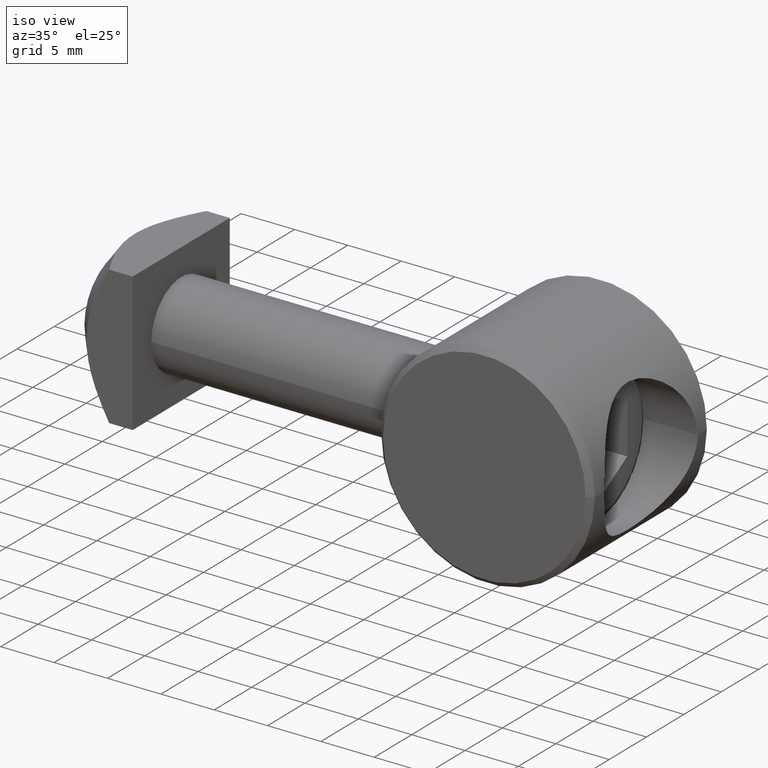
[diagram: clean part render]
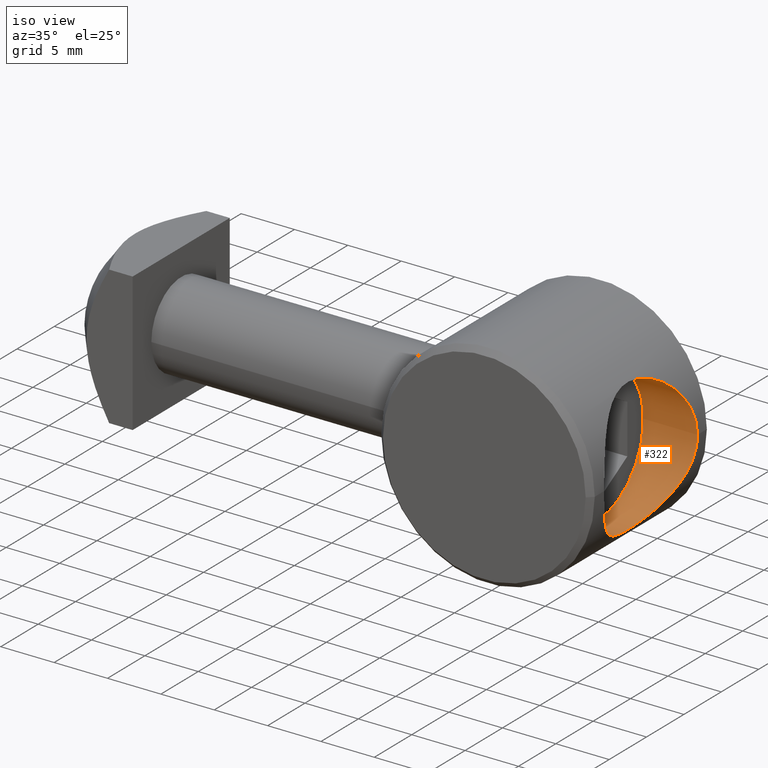
[diagram: same view with one face highlighted and labeled with its STEP entity id]
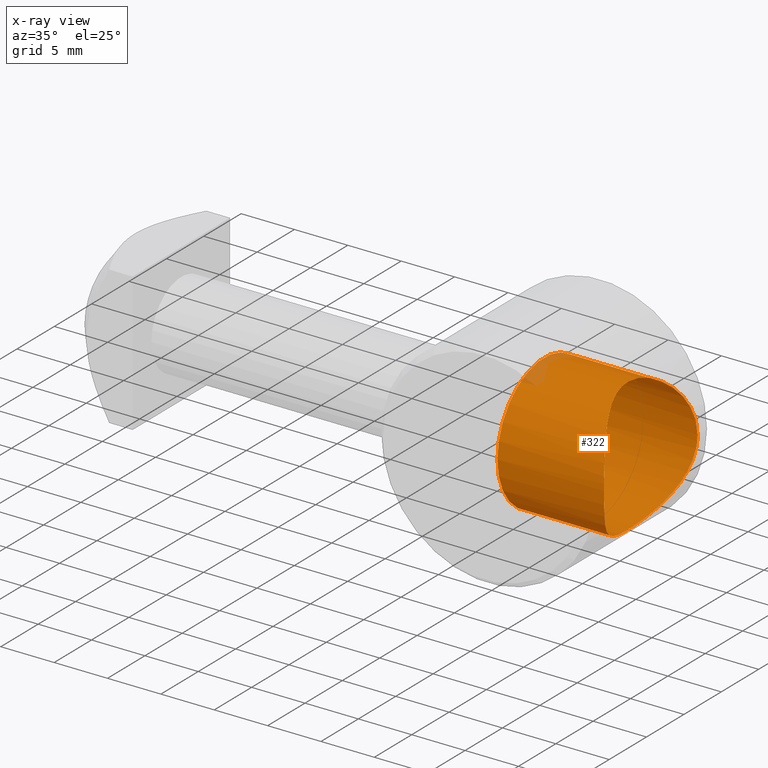
[diagram: x-ray of the same camera — body ghosted, the highlighted face saturated]
A machine part, iso view. The second image highlights one B-rep face of the part: STEP entity #322.
The next image is the same camera in x-ray: the body ghosted, the highlighted face saturated — about 2% of this face is hidden behind the body in this view.
In plain terms, the highlighted cylindrical surface (bore or boss wall) has radius 6.25 mm, axis along (1, 0, 0).
Its self-contained STEP definition (entity closure, byte-faithful):
#89=CARTESIAN_POINT('',(9.999999999959528,-14.249999999943157,0.0));
#90=VERTEX_POINT('',#89);
#97=CARTESIAN_POINT('',(9.999999999959528,-1.749999999993179,0.0));
#98=VERTEX_POINT('',#97);
#99=CARTESIAN_POINT('',(9.999999999959528,-1.749999999993179,0.0));
#100=CARTESIAN_POINT('',(9.999999999959528,-1.749999999993179,0.381015843201705));
#101=CARTESIAN_POINT('',(9.947957659345320,-1.832938887847377,1.281563881260674));
#102=CARTESIAN_POINT('',(9.697736779683510,-2.239573534965075,2.559871248971563));
#103=CARTESIAN_POINT('',(9.284825202294996,-2.958299514674309,3.775362180584778));
#104=CARTESIAN_POINT('',(8.809040863385235,-3.883419976227742,4.770329605695938));
#105=CARTESIAN_POINT('',(8.347865997365716,-4.977720789796877,5.521924238923512));
#106=CARTESIAN_POINT('',(8.002557703722687,-6.127620150830353,6.001518528179147));
#107=CARTESIAN_POINT('',(7.809952091599826,-7.289382260383718,6.245889052062280));
#108=CARTESIAN_POINT('',(7.789228727664067,-8.510792638957810,6.271132108756628));
#109=CARTESIAN_POINT('',(7.974317985883772,-9.779853585514047,6.039709362789278));
#110=CARTESIAN_POINT('',(8.322108371069589,-10.942544321370406,5.559750873904815));
#111=CARTESIAN_POINT('',(8.771024422211212,-12.033803947806973,4.833294514281571));
#112=CARTESIAN_POINT('',(9.167829441273625,-12.818624201458533,4.033964991664595));
#113=CARTESIAN_POINT('',(9.549013468415069,-13.506603500023175,3.024815617803477));
#114=CARTESIAN_POINT('',(9.822036084176943,-13.963440941070530,2.015079126254909));
#115=CARTESIAN_POINT('',(9.974251518510300,-14.208891361938186,0.908140928554337));
#116=CARTESIAN_POINT('',(9.999999999959528,-14.249999999943157,0.265919495107419));
#117=CARTESIAN_POINT('',(9.999999999959528,-14.249999999943157,3.827021E-016));
#118=B_SPLINE_CURVE_WITH_KNOTS('',3,(#99,#100,#101,#102,#103,#104,#105,#106,#107,#108,#109,#110,#111,#112,#113,#114,#115,#116,#117),.UNSPECIFIED.,.F.,.U.,(4,1,1,1,1,1,1,1,1,1,1,1,1,1,1,1,4),(0.0,1.145222325022053,2.697930442561629,4.057293072373303,5.533657046003965,6.992516953234051,8.250127894240462,9.391558921312766,10.579049367483725,11.887746662872329,13.269199461047972,14.468931767759889,16.029583632758179,16.811922507863162,18.300722700457698,19.427640060388175,20.226139923815310),.UNSPECIFIED.);
#119=EDGE_CURVE('',#98,#90,#118,.T.);
#146=CARTESIAN_POINT('',(9.999999999959528,-14.249999999943157,-8.419447E-016));
#147=CARTESIAN_POINT('',(9.999999999959528,-14.249999999943157,-0.265919495107419));
#148=CARTESIAN_POINT('',(9.974251369092599,-14.208891031370058,-0.908141016118147));
#149=CARTESIAN_POINT('',(9.822036947554807,-13.963442851212676,-2.015078620281065));
#150=CARTESIAN_POINT('',(9.539857910370756,-13.491281962398261,-3.058665095301487));
#151=CARTESIAN_POINT('',(9.142193565784055,-12.771464110272063,-4.094703994506850));
#152=CARTESIAN_POINT('',(8.743546403745768,-11.972688836616271,-4.879327376255214));
#153=CARTESIAN_POINT('',(8.310682359378916,-10.904407152021577,-5.575510076607611));
#154=CARTESIAN_POINT('',(7.974322810217927,-9.779852238146759,-6.039705304843236));
#155=CARTESIAN_POINT('',(7.789227108383329,-8.510792786188631,-6.271133414347703));
#156=CARTESIAN_POINT('',(7.809954080353691,-7.289382781434142,-6.245887578480629));
#157=CARTESIAN_POINT('',(8.002551199096615,-6.127617926032144,-6.001523251476472));
#158=CARTESIAN_POINT('',(8.359872593293858,-4.937847789605257,-5.505268240471716));
#159=CARTESIAN_POINT('',(8.834492618747845,-3.829239223314289,-4.727067783865609));
#160=CARTESIAN_POINT('',(9.306625334590081,-2.920104361649464,-3.716451334742668));
#161=CARTESIAN_POINT('',(9.702951377001682,-2.231089900884399,-2.533216449917706));
#162=CARTESIAN_POINT('',(9.947957221571869,-1.832941699275580,-1.281569455158594));
#163=CARTESIAN_POINT('',(9.999999999959528,-1.749999999993179,-0.381015843201429));
#164=CARTESIAN_POINT('',(9.999999999959528,-1.749999999993179,-1.990051E-015));
#165=B_SPLINE_CURVE_WITH_KNOTS('',3,(#146,#147,#148,#149,#150,#151,#152,#153,#154,#155,#156,#157,#158,#159,#160,#161,#162,#163,#164),.UNSPECIFIED.,.F.,.U.,(4,1,1,1,1,1,1,1,1,1,1,1,1,1,1,1,4),(0.0,0.798499863427133,1.925417223357597,3.414217415952128,4.310462581328264,5.884816078636793,6.956940462767391,8.338393260942844,9.647090556331563,10.834581002504386,11.976012029575180,13.233622970581315,14.826291382380839,16.253369047003972,17.528209481254116,19.080917598794173,20.226139923815342),.UNSPECIFIED.);
#166=EDGE_CURVE('',#90,#98,#165,.T.);
#288=CARTESIAN_POINT('',(19.000000000039563,-7.999999999968168,0.0));
#289=DIRECTION('',(1.0,0.0,0.0));
#290=DIRECTION('',(0.0,1.0,0.0));
#291=AXIS2_PLACEMENT_3D('',#288,#289,#290);
#292=CYLINDRICAL_SURFACE('',#291,6.249999999974989);
#293=CARTESIAN_POINT('',(-4.547474E-013,-14.249999999943157,0.0));
#294=VERTEX_POINT('',#293);
#295=CARTESIAN_POINT('',(-4.547474E-013,-1.749999999993179,0.0));
#296=VERTEX_POINT('',#295);
#297=CARTESIAN_POINT('',(-4.547474E-013,-7.999999999968168,0.0));
#298=DIRECTION('',(1.0,0.0,0.0));
#299=DIRECTION('',(0.0,1.0,0.0));
#300=AXIS2_PLACEMENT_3D('',#297,#298,#299);
#301=CIRCLE('',#300,6.249999999974989);
#302=EDGE_CURVE('',#294,#296,#301,.T.);
#303=ORIENTED_EDGE('',*,*,#302,.F.);
#304=CARTESIAN_POINT('',(-4.547474E-013,-7.999999999968168,0.0));
#305=DIRECTION('',(1.0,0.0,0.0));
#306=DIRECTION('',(0.0,1.0,0.0));
#307=AXIS2_PLACEMENT_3D('',#304,#305,#306);
#308=CIRCLE('',#307,6.249999999974989);
#309=EDGE_CURVE('',#296,#294,#308,.T.);
#310=ORIENTED_EDGE('',*,*,#309,.F.);
#311=CARTESIAN_POINT('',(9.999999999959528,-1.749999999993179,0.0));
#312=DIRECTION('',(-1.0,0.0,0.0));
#313=VECTOR('',#312,9.999999999959982);
#314=LINE('',#311,#313);
#315=EDGE_CURVE('',#98,#296,#314,.T.);
#316=ORIENTED_EDGE('',*,*,#315,.F.);
#317=ORIENTED_EDGE('',*,*,#119,.T.);
#318=ORIENTED_EDGE('',*,*,#166,.T.);
#319=ORIENTED_EDGE('',*,*,#315,.T.);
#320=EDGE_LOOP('',(#303,#310,#316,#317,#318,#319));
#321=FACE_OUTER_BOUND('',#320,.T.);
#322=ADVANCED_FACE('',(#321),#292,.F.);